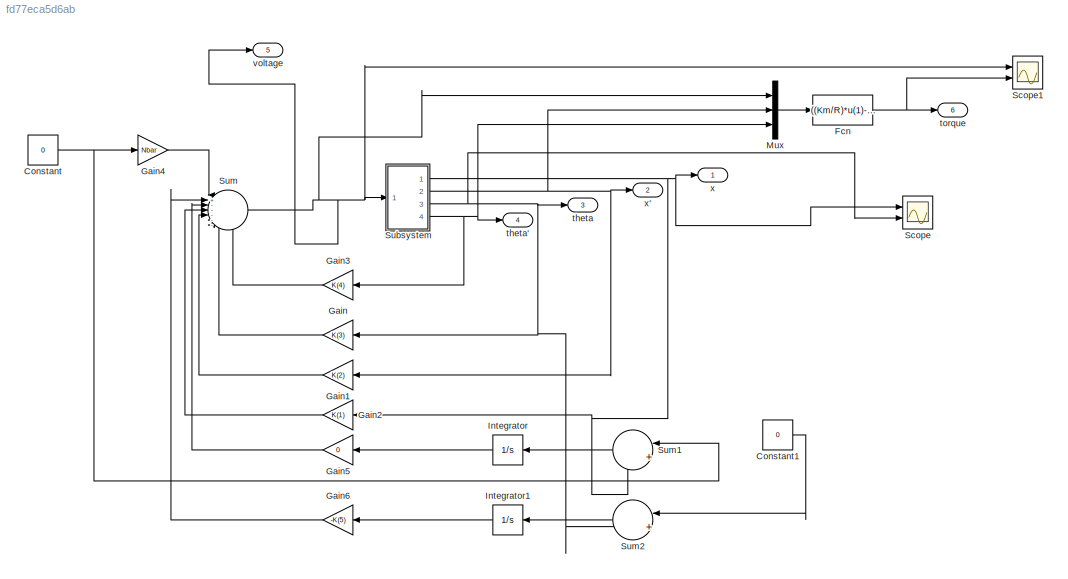
MODEL slx_fd77eca5d6ab
KIND model
CONFIG AbsTol = auto
CONFIG FixedStep = 0.001
CONFIG MaxStep = auto
CONFIG MinStep = auto
CONFIG RelTol = 1e-3
CONFIG SampleTimeConstraint = Unconstrained
CONFIG Solver = ode3
CONFIG SolverMode = Auto
CONFIG SolverName = ode3
CONFIG StartTime = 0.0
CONFIG StopTime = 10
BLOCK [Constant] Constant
  Value = 0
BLOCK [Constant] Constant1
  Value = 0
BLOCK [Fcn] Fcn
  Expr = ((Km/R)*u(1)-((Ke*Km)/R)*((u(2)/r)-u(3)))*10
BLOCK [Gain] Gain
  Gain = K(3)
  OutDataTypeStr = Inherit: Inherit via internal rule
  ParamDataTypeStr = Inherit: Inherit via internal rule
  SaturateOnIntegerOverflow = off
BLOCK [Gain] Gain1
  Gain = K(2)
  OutDataTypeStr = Inherit: Inherit via internal rule
  ParamDataTypeStr = Inherit: Inherit via internal rule
  SaturateOnIntegerOverflow = off
BLOCK [Gain] Gain2
  Gain = K(1)
  OutDataTypeStr = Inherit: Inherit via internal rule
  ParamDataTypeStr = Inherit: Inherit via internal rule
  SaturateOnIntegerOverflow = off
BLOCK [Gain] Gain3
  Gain = K(4)
  OutDataTypeStr = Inherit: Inherit via internal rule
  ParamDataTypeStr = Inherit: Inherit via internal rule
  SaturateOnIntegerOverflow = off
BLOCK [Gain] Gain4
  Gain = Nbar
  OutDataTypeStr = Inherit: Inherit via internal rule
  ParamDataTypeStr = Inherit: Inherit via internal rule
  SaturateOnIntegerOverflow = off
BLOCK [Gain] Gain5
  Gain = 0
  OutDataTypeStr = Inherit: Inherit via internal rule
  ParamDataTypeStr = Inherit: Inherit via internal rule
  SaturateOnIntegerOverflow = off
BLOCK [Gain] Gain6
  Gain = -K(5)
  OutDataTypeStr = Inherit: Inherit via internal rule
  ParamDataTypeStr = Inherit: Inherit via internal rule
  SaturateOnIntegerOverflow = off
BLOCK [Integrator] Integrator
  Ports = [1, 1]
BLOCK [Integrator] Integrator1
  Ports = [1, 1]
BLOCK [Mux] Mux
  DisplayOption = bar
  Inputs = 3
  Ports = [3, 1]
BLOCK [Scope] Scope
  Floating = off
  NumInputPorts = 2
  Ports = [2]
  YMax = 5~5
  YMin = -5~-5
BLOCK [Scope] Scope1
  Floating = off
  NumInputPorts = 2
  Ports = [2]
  SaveName = ScopeData1
  YMax = 5~5
  YMin = -5~-5
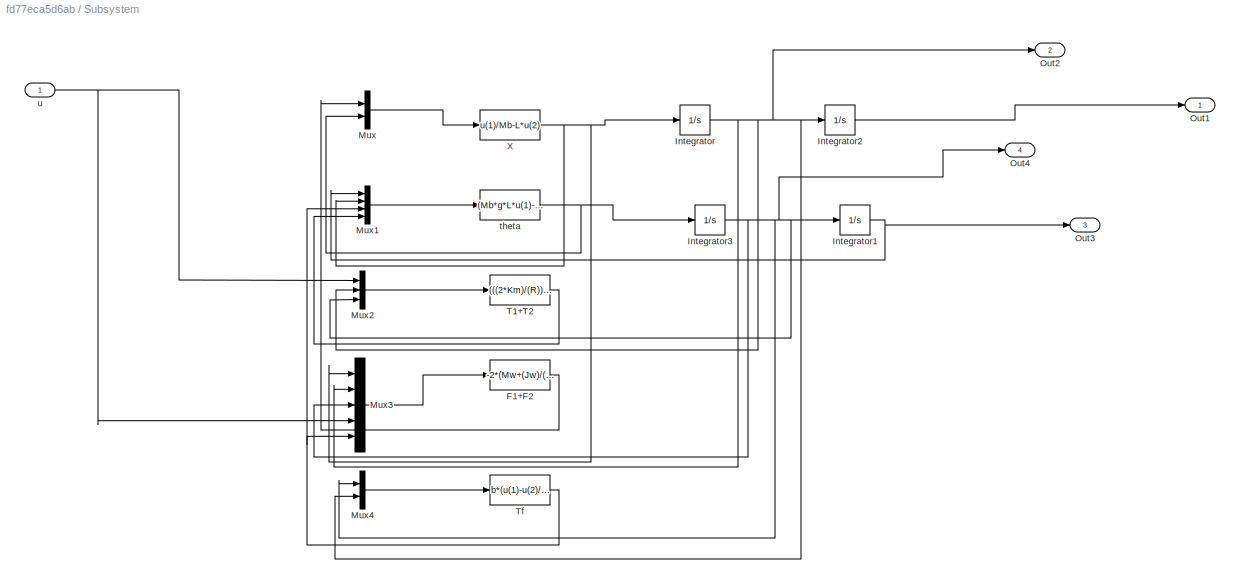
BLOCK [SubSystem] Subsystem
  Ports = [1, 4]
  RequestExecContextInheritance = off
BLOCK [Fcn] Subsystem/F1+F2 
  Expr = -2*(Mw+(Jw)/(r^2))*u(1)-((2*Km*Ke)/(R*(r^2)))*u(2)+((2*Km*Ke)/(R*r))*u(3)+((2*Km)/(r*R))*u(4)-(2/r)*u(5)
BLOCK [Integrator] Subsystem/Integrator
  Ports = [1, 1]
BLOCK [Integrator] Subsystem/Integrator1
  InitialCondition = x_0(3)
  Ports = [1, 1]
BLOCK [Integrator] Subsystem/Integrator2
  InitialCondition = x_0(1)
  Ports = [1, 1]
BLOCK [Integrator] Subsystem/Integrator3
  Ports = [1, 1]
BLOCK [Mux] Subsystem/Mux
  DisplayOption = bar
  Inputs = 2
  Ports = [2, 1]
BLOCK [Mux] Subsystem/Mux1
  DisplayOption = bar
  Ports = [4, 1]
BLOCK [Mux] Subsystem/Mux2
  DisplayOption = bar
  Inputs = 3
  Ports = [3, 1]
BLOCK [Mux] Subsystem/Mux3
  DisplayOption = bar
  Inputs = 5
  Ports = [5, 1]
BLOCK [Mux] Subsystem/Mux4
  DisplayOption = bar
  Inputs = 2
  Ports = [2, 1]
BLOCK [Outport] Subsystem/Out1
  IconDisplay = Port number
BLOCK [Outport] Subsystem/Out2
  IconDisplay = Port number
  Port = 2
BLOCK [Outport] Subsystem/Out3
  IconDisplay = Port number
  Port = 3
BLOCK [Outport] Subsystem/Out4
  IconDisplay = Port number
  Port = 4
BLOCK [Fcn] Subsystem/T1+T2 
  Expr = (((2*Km)/(R))*u(1)-((2*Km*Ke)/(R*r))*u(2)+((2*Ke*Km)/(R))*u(3))
BLOCK [Fcn] Subsystem/Tf 
  Expr = b*(u(1)-u(2)/r)
BLOCK [Fcn] Subsystem/X
  Expr = u(1)/Mb-L*u(2)
BLOCK [Fcn] Subsystem/theta 
  Expr = (Mb*g*L*u(1)-Mb*L*u(2)+2*u(3)-u(4))/(Jb+Mb*L^2)
BLOCK [Inport] Subsystem/u 
  IconDisplay = Port number
BLOCK [Sum] Sum
  IconShape = round
  InputSameDT = off
  Inputs = |+------
  OutDataTypeStr = Inherit: Inherit via internal rule
  Ports = [7, 1]
  SaturateOnIntegerOverflow = off
BLOCK [Sum] Sum1
  IconShape = round
  InputSameDT = off
  Inputs = |+-
  OutDataTypeStr = Inherit: Inherit via internal rule
  Ports = [2, 1]
  SaturateOnIntegerOverflow = off
BLOCK [Sum] Sum2
  IconShape = round
  InputSameDT = off
  Inputs = |+-
  OutDataTypeStr = Inherit: Inherit via internal rule
  Ports = [2, 1]
  SaturateOnIntegerOverflow = off
BLOCK [Outport] theta 
  IconDisplay = Port number
  Port = 3
BLOCK [Outport] theta' 
  IconDisplay = Port number
  Port = 4
BLOCK [Outport] torque 
  IconDisplay = Port number
  Port = 6
BLOCK [Outport] voltage
  IconDisplay = Port number
  Port = 5
BLOCK [Outport] x 
  IconDisplay = Port number
BLOCK [Outport] x' 
  IconDisplay = Port number
  Port = 2
LINE Constant1:1 -> Sum2:1
NET Constant:1 -> Gain4:1, Sum1:1
NET Fcn:1 -> Scope1:2, torque :1
LINE Gain1:1 -> Sum:5
LINE Gain2:1 -> Sum:4
LINE Gain3:1 -> Sum:7
LINE Gain4:1 -> Sum:1
LINE Gain5:1 -> Sum:3
LINE Gain6:1 -> Sum:2
LINE Gain:1 -> Sum:6
LINE Integrator1:1 -> Gain6:1
LINE Integrator:1 -> Gain5:1
LINE Mux:1 -> Fcn:1
LINE Subsystem/F1+F2 :1 -> Subsystem/Mux:1
NET Subsystem/Integrator1:1 -> Subsystem/Mux1:1, Subsystem/Out3:1
LINE Subsystem/Integrator2:1 -> Subsystem/Out1:1
NET Subsystem/Integrator3:1 -> Subsystem/Integrator1:1, Subsystem/Mux2:3, Subsystem/Mux3:3, Subsystem/Mux4:1, Subsystem/Out4:1
NET Subsystem/Integrator:1 -> Subsystem/Integrator2:1, Subsystem/Mux2:2, Subsystem/Mux3:2, Subsystem/Mux4:2, Subsystem/Out2:1
LINE Subsystem/Mux1:1 -> Subsystem/theta :1
LINE Subsystem/Mux2:1 -> Subsystem/T1+T2 :1
LINE Subsystem/Mux3:1 -> Subsystem/F1+F2 :1
LINE Subsystem/Mux4:1 -> Subsystem/Tf :1
LINE Subsystem/Mux:1 -> Subsystem/X:1
LINE Subsystem/T1+T2 :1 -> Subsystem/Mux1:4
NET Subsystem/Tf :1 -> Subsystem/Mux1:3, Subsystem/Mux3:5
NET Subsystem/X:1 -> Subsystem/Integrator:1, Subsystem/Mux1:2, Subsystem/Mux3:1
NET Subsystem/theta :1 -> Subsystem/Integrator3:1, Subsystem/Mux:2
NET Subsystem/u :1 -> Subsystem/Mux2:1, Subsystem/Mux3:4
NET Subsystem:1 -> Gain2:1, Scope:1, Sum1:2, x :1
NET Subsystem:2 -> Gain1:1, Mux:2, x' :1
NET Subsystem:3 -> Gain:1, Scope:2, Sum2:2, theta :1
NET Subsystem:4 -> Gain3:1, Mux:3, theta' :1
LINE Sum1:1 -> Integrator:1
LINE Sum2:1 -> Integrator1:1
NET Sum:1 -> Mux:1, Scope1:1, Subsystem:1, voltage:1
note: NET lines group one-source signal fan-out (src -> all destinations, sorted); 1:1 wires keep LINE
